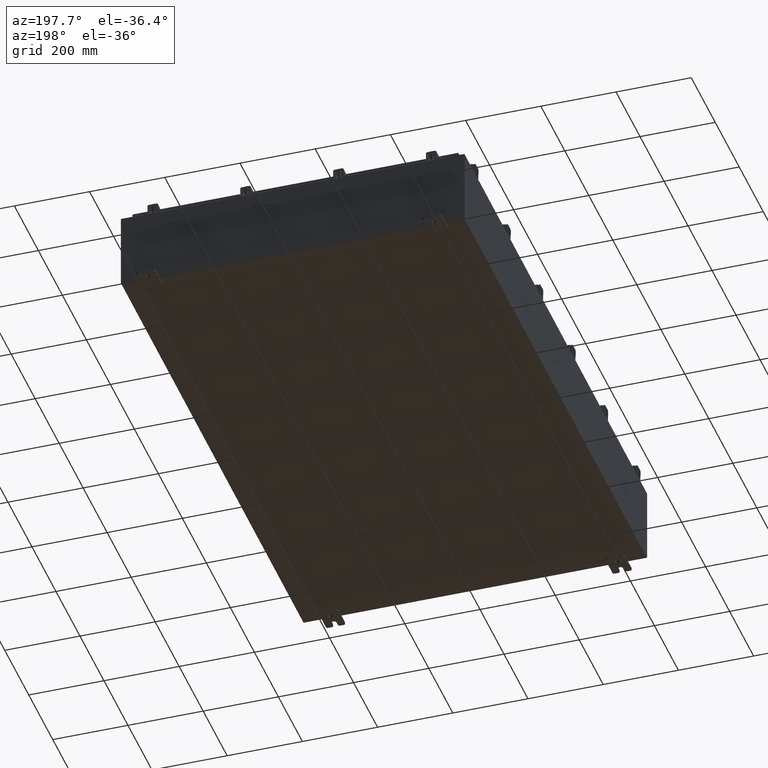
[diagram: clean part render]
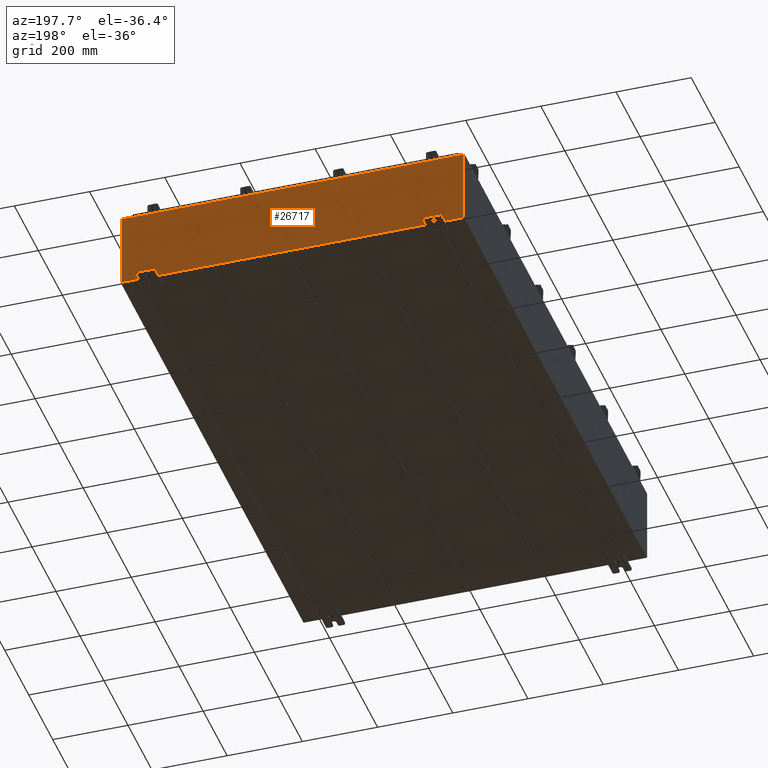
[diagram: same view with one face highlighted and labeled with its STEP entity id]
A machine part, auxiliary view. The second image highlights one B-rep face of the part: STEP entity #26717.
In plain terms, the highlighted planar face has unit normal (0, -1, 0).
Its self-contained STEP definition (entity closure, byte-faithful):
#172 = DIRECTION ( 'NONE',  ( -0.0000000000000000000, 1.000000000000000000, -0.0000000000000000000 ) ) ;
#265 = EDGE_CURVE ( 'NONE', #12413, #9670, #12618, .T. ) ;
#367 = VERTEX_POINT ( 'NONE', #16908 ) ;
#464 = CARTESIAN_POINT ( 'NONE',  ( 17.92530000000000400, 0.0000000000000000000, 3.925300000000000500 ) ) ;
#720 = CARTESIAN_POINT ( 'NONE',  ( -16.63719999999999600, 3.756290991288361700E-016, 3.912300000000000100 ) ) ;
#871 = EDGE_CURVE ( 'NONE', #16029, #19640, #5572, .T. ) ;
#1200 = VECTOR ( 'NONE', #14246, 39.37007874015748100 ) ;
#1483 = EDGE_CURVE ( 'NONE', #10132, #4360, #10574, .T. ) ;
#1680 = LINE ( 'NONE', #4977, #18034 ) ;
#1895 = EDGE_CURVE ( 'NONE', #20646, #12413, #23876, .T. ) ;
#2049 = EDGE_CURVE ( 'NONE', #4360, #367, #8512, .T. ) ;
#2163 = FACE_OUTER_BOUND ( 'NONE', #2494, .T. ) ;
#2494 = EDGE_LOOP ( 'NONE', ( #23630, #4331, #24967, #18735, #19158, #13518, #19537, #10911, #17923, #20211, #24707, #23707 ) ) ;
#2699 = AXIS2_PLACEMENT_3D ( 'NONE', #15694, #2876, #17815 ) ;
#2876 = DIRECTION ( 'NONE',  ( 0.0000000000000000000, -1.000000000000000000, 0.0000000000000000000 ) ) ;
#3335 = EDGE_CURVE ( 'NONE', #25415, #19640, #17150, .T. ) ;
#4331 = ORIENTED_EDGE ( 'NONE', *, *, #1483, .F. ) ;
#4360 = VERTEX_POINT ( 'NONE', #19095 ) ;
#4556 = CARTESIAN_POINT ( 'NONE',  ( -16.63719999999999600, 3.756290991288361700E-016, 3.912300000000000100 ) ) ;
#4977 = CARTESIAN_POINT ( 'NONE',  ( -17.92529999999999600, 0.0000000000000000000, 3.925300000000000500 ) ) ;
#5572 = LINE ( 'NONE', #13441, #16958 ) ;
#6776 = EDGE_CURVE ( 'NONE', #9764, #19475, #1680, .T. ) ;
#6991 = AXIS2_PLACEMENT_3D ( 'NONE', #21664, #172, #11392 ) ;
#7700 = DIRECTION ( 'NONE',  ( -0.0000000000000000000, -0.0000000000000000000, 1.000000000000000000 ) ) ;
#8003 = CARTESIAN_POINT ( 'NONE',  ( 16.65587500000000500, 0.0000000000000000000, 3.874950000000000100 ) ) ;
#8491 = VECTOR ( 'NONE', #12963, 39.37007874015748100 ) ;
#8507 = CARTESIAN_POINT ( 'NONE',  ( 16.63720000000000700, 0.0000000000000000000, 3.874950000000000100 ) ) ;
#8512 = LINE ( 'NONE', #18885, #14223 ) ;
#9409 = CARTESIAN_POINT ( 'NONE',  ( 16.63720000000000700, 0.0000000000000000000, 3.912300000000000100 ) ) ;
#9534 = CARTESIAN_POINT ( 'NONE',  ( -16.63719999999999600, -0.0000000000000000000, 3.874950000000000100 ) ) ;
#9614 = EDGE_CURVE ( 'NONE', #19475, #20646, #19553, .T. ) ;
#9670 = VERTEX_POINT ( 'NONE', #16099 ) ;
#9764 = VERTEX_POINT ( 'NONE', #24940 ) ;
#10132 = VERTEX_POINT ( 'NONE', #9534 ) ;
#10148 = DIRECTION ( 'NONE',  ( 0.0000000000000000000, 0.0000000000000000000, -1.000000000000000000 ) ) ;
#10574 = CIRCLE ( 'NONE', #6991, 0.01867499999999949400 ) ;
#10795 = VECTOR ( 'NONE', #15323, 39.37007874015748100 ) ;
#10848 = LINE ( 'NONE', #13923, #21523 ) ;
#10911 = ORIENTED_EDGE ( 'NONE', *, *, #6776, .T. ) ;
#11117 = AXIS2_PLACEMENT_3D ( 'NONE', #8003, #22932, #10148 ) ;
#11252 = EDGE_CURVE ( 'NONE', #9764, #18777, #20525, .T. ) ;
#11392 = DIRECTION ( 'NONE',  ( 0.0000000000000000000, 0.0000000000000000000, -1.000000000000000000 ) ) ;
#11431 = DIRECTION ( 'NONE',  ( 1.000000000000000000, 0.0000000000000000000, 0.0000000000000000000 ) ) ;
#11621 = DIRECTION ( 'NONE',  ( 0.0000000000000000000, 0.0000000000000000000, -1.000000000000000000 ) ) ;
#12260 = CARTESIAN_POINT ( 'NONE',  ( -17.92529999999999600, 0.0000000000000000000, -3.925299999999999100 ) ) ;
#12413 = VERTEX_POINT ( 'NONE', #15733 ) ;
#12551 = EDGE_CURVE ( 'NONE', #9670, #367, #21677, .T. ) ;
#12618 = LINE ( 'NONE', #25648, #17627 ) ;
#12963 = DIRECTION ( 'NONE',  ( -8.681145560800009800E-014, 0.0000000000000000000, -1.000000000000000000 ) ) ;
#13286 = CARTESIAN_POINT ( 'NONE',  ( 16.67455000000000700, 0.0000000000000000000, 3.874950000000000100 ) ) ;
#13441 = CARTESIAN_POINT ( 'NONE',  ( 16.63720000000000700, 0.0000000000000000000, 0.0000000000000000000 ) ) ;
#13518 = ORIENTED_EDGE ( 'NONE', *, *, #22463, .F. ) ;
#13539 = PLANE ( 'NONE',  #2699 ) ;
#13923 = CARTESIAN_POINT ( 'NONE',  ( -16.63719999999999600, -0.0000000000000000000, 0.0000000000000000000 ) ) ;
#14064 = CARTESIAN_POINT ( 'NONE',  ( -17.92529999999999600, 0.0000000000000000000, 3.925300000000000500 ) ) ;
#14212 = DIRECTION ( 'NONE',  ( 0.0000000000000000000, 0.0000000000000000000, 1.000000000000000000 ) ) ;
#14223 = VECTOR ( 'NONE', #18965, 39.37007874015748100 ) ;
#14246 = DIRECTION ( 'NONE',  ( -1.000000000000000000, -0.0000000000000000000, -0.0000000000000000000 ) ) ;
#14569 = VECTOR ( 'NONE', #11621, 39.37007874015748100 ) ;
#15323 = DIRECTION ( 'NONE',  ( 1.000000000000000000, 0.0000000000000000000, 0.0000000000000000000 ) ) ;
#15361 = CARTESIAN_POINT ( 'NONE',  ( 17.92530000000000400, 0.0000000000000000000, -3.925299999999999100 ) ) ;
#15694 = CARTESIAN_POINT ( 'NONE',  ( 0.0000000000000000000, 0.0000000000000000000, 0.0000000000000000000 ) ) ;
#15733 = CARTESIAN_POINT ( 'NONE',  ( -17.92529999999999600, 0.0000000000000000000, -3.925299999999999100 ) ) ;
#16029 = VERTEX_POINT ( 'NONE', #8507 ) ;
#16099 = CARTESIAN_POINT ( 'NONE',  ( -17.92529999999999600, 0.0000000000000000000, 3.925300000000000500 ) ) ;
#16908 = CARTESIAN_POINT ( 'NONE',  ( -16.67454999999999600, 0.0000000000000000000, 3.925300000000000500 ) ) ;
#16958 = VECTOR ( 'NONE', #14212, 39.37007874015748100 ) ;
#17150 = LINE ( 'NONE', #4556, #10795 ) ;
#17627 = VECTOR ( 'NONE', #7700, 39.37007874015748100 ) ;
#17807 = CIRCLE ( 'NONE', #11117, 0.01867499999999949400 ) ;
#17815 = DIRECTION ( 'NONE',  ( 0.0000000000000000000, -0.0000000000000000000, -1.000000000000000000 ) ) ;
#17923 = ORIENTED_EDGE ( 'NONE', *, *, #9614, .T. ) ;
#18034 = VECTOR ( 'NONE', #11431, 39.37007874015748100 ) ;
#18180 = DIRECTION ( 'NONE',  ( 0.0000000000000000000, 0.0000000000000000000, -1.000000000000000000 ) ) ;
#18735 = ORIENTED_EDGE ( 'NONE', *, *, #3335, .T. ) ;
#18777 = VERTEX_POINT ( 'NONE', #13286 ) ;
#18885 = CARTESIAN_POINT ( 'NONE',  ( -16.67454999999999600, -0.0000000000000000000, 0.0000000000000000000 ) ) ;
#18965 = DIRECTION ( 'NONE',  ( 0.0000000000000000000, 0.0000000000000000000, 1.000000000000000000 ) ) ;
#19095 = CARTESIAN_POINT ( 'NONE',  ( -16.67454999999999600, 0.0000000000000000000, 3.874950000000000100 ) ) ;
#19158 = ORIENTED_EDGE ( 'NONE', *, *, #871, .F. ) ;
#19475 = VERTEX_POINT ( 'NONE', #464 ) ;
#19537 = ORIENTED_EDGE ( 'NONE', *, *, #11252, .F. ) ;
#19553 = LINE ( 'NONE', #24371, #14569 ) ;
#19640 = VERTEX_POINT ( 'NONE', #9409 ) ;
#20211 = ORIENTED_EDGE ( 'NONE', *, *, #1895, .T. ) ;
#20525 = LINE ( 'NONE', #25637, #8491 ) ;
#20646 = VERTEX_POINT ( 'NONE', #15361 ) ;
#21523 = VECTOR ( 'NONE', #18180, 39.37007874015748100 ) ;
#21664 = CARTESIAN_POINT ( 'NONE',  ( -16.65587499999999800, 0.0000000000000000000, 3.874950000000000100 ) ) ;
#21677 = LINE ( 'NONE', #14064, #27346 ) ;
#22463 = EDGE_CURVE ( 'NONE', #18777, #16029, #17807, .T. ) ;
#22932 = DIRECTION ( 'NONE',  ( -0.0000000000000000000, 1.000000000000000000, -0.0000000000000000000 ) ) ;
#23630 = ORIENTED_EDGE ( 'NONE', *, *, #2049, .F. ) ;
#23707 = ORIENTED_EDGE ( 'NONE', *, *, #12551, .T. ) ;
#23876 = LINE ( 'NONE', #12260, #1200 ) ;
#24371 = CARTESIAN_POINT ( 'NONE',  ( 17.92530000000000400, 0.0000000000000000000, 3.925300000000000500 ) ) ;
#24707 = ORIENTED_EDGE ( 'NONE', *, *, #265, .T. ) ;
#24940 = CARTESIAN_POINT ( 'NONE',  ( 16.67455000000001100, 0.0000000000000000000, 3.925300000000000500 ) ) ;
#24967 = ORIENTED_EDGE ( 'NONE', *, *, #26832, .F. ) ;
#25415 = VERTEX_POINT ( 'NONE', #720 ) ;
#25637 = CARTESIAN_POINT ( 'NONE',  ( 16.67454999999967000, -0.0000000000000000000, -1.447541957108349400E-012 ) ) ;
#25648 = CARTESIAN_POINT ( 'NONE',  ( -17.92529999999999600, 0.0000000000000000000, 3.925300000000000500 ) ) ;
#26717 = ADVANCED_FACE ( 'NONE', ( #2163 ), #13539, .F. ) ;
#26816 = DIRECTION ( 'NONE',  ( 1.000000000000000000, 0.0000000000000000000, 0.0000000000000000000 ) ) ;
#26832 = EDGE_CURVE ( 'NONE', #25415, #10132, #10848, .T. ) ;
#27346 = VECTOR ( 'NONE', #26816, 39.37007874015748100 ) ;